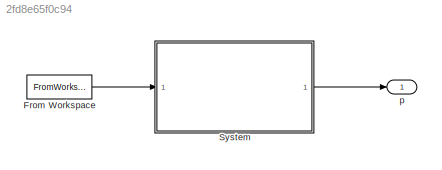
MODEL slx_2fd8e65f0c94
KIND model
CONFIG AbsTol = auto
CONFIG EnableMultiTasking = on
CONFIG FixedStep = auto
CONFIG MaxStep = 1
CONFIG MinStep = auto
CONFIG RelTol = 1e-3
CONFIG SampleTimeConstraint = Unconstrained
CONFIG Solver = ode45
CONFIG SolverName = ode45
CONFIG StartTime = 0.0
CONFIG StopTime = 100.0
BLOCK [FromWorkspace] From Workspace
  OutputAfterFinalValue = Holding final value
  VariableName = data.mdot_in
  ZeroCross = off
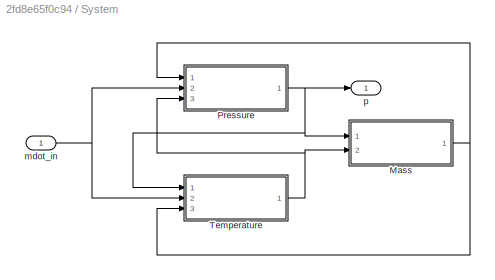
BLOCK [SubSystem] System
  Ports = [1, 1]
  RequestExecContextInheritance = off
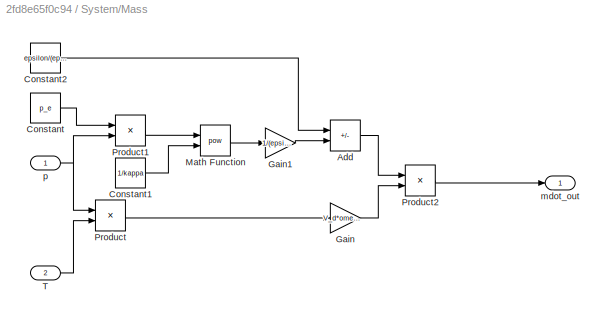
BLOCK [SubSystem] System/Mass
  Ports = [2, 1]
  RequestExecContextInheritance = off
BLOCK [Sum] System/Mass/Add
  IconShape = rectangular
  Inputs = +-
  Ports = [2, 1]
BLOCK [Constant] System/Mass/Constant
  Value = p_e
BLOCK [Constant] System/Mass/Constant1
  Value = 1/kappa
BLOCK [Constant] System/Mass/Constant2
  Value = epsilon/(epsilon-1)
BLOCK [Gain] System/Mass/Gain
  Gain = V_d*omega_e/(4*pi*R)*lambda_lw
BLOCK [Gain] System/Mass/Gain1
  Gain = 1/(epsilon-1)
BLOCK [Math] System/Mass/Math Function
  Operator = pow
  Ports = [2, 1]
BLOCK [Product] System/Mass/Product
  Inputs = */
  Ports = [2, 1]
BLOCK [Product] System/Mass/Product1
  Inputs = */
  Ports = [2, 1]
BLOCK [Product] System/Mass/Product2
  Ports = [2, 1]
BLOCK [Inport] System/Mass/T
  Port = 2
BLOCK [Outport] System/Mass/mdot_out
BLOCK [Inport] System/Mass/p
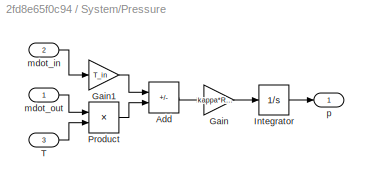
BLOCK [SubSystem] System/Pressure
  Ports = [3, 1]
  RequestExecContextInheritance = off
BLOCK [Sum] System/Pressure/Add
  IconShape = rectangular
  Inputs = +-
  Ports = [2, 1]
BLOCK [Gain] System/Pressure/Gain
  Gain = kappa*R/(V_m)
BLOCK [Gain] System/Pressure/Gain1
  Gain = T_in
BLOCK [Integrator] System/Pressure/Integrator
  InitialCondition = 30000
  Ports = [1, 1]
BLOCK [Product] System/Pressure/Product
  Ports = [2, 1]
BLOCK [Inport] System/Pressure/T
  Port = 3
BLOCK [Inport] System/Pressure/mdot_in
  Port = 2
BLOCK [Inport] System/Pressure/mdot_out
BLOCK [Outport] System/Pressure/p
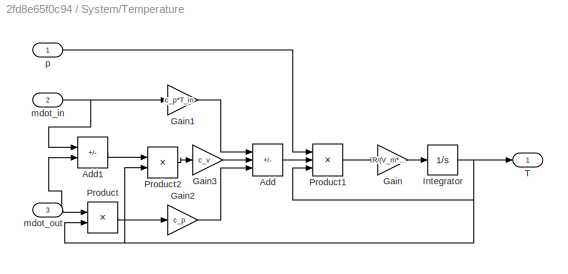
BLOCK [SubSystem] System/Temperature
  Ports = [3, 1]
  RequestExecContextInheritance = off
BLOCK [Sum] System/Temperature/Add
  IconShape = rectangular
  Inputs = +--
  Ports = [3, 1]
BLOCK [Sum] System/Temperature/Add1
  IconShape = rectangular
  Inputs = +-
  Ports = [2, 1]
BLOCK [Gain] System/Temperature/Gain
  Gain = R/(V_m*c_v)
BLOCK [Gain] System/Temperature/Gain1
  Gain = c_p*T_in
BLOCK [Gain] System/Temperature/Gain2
  Gain = c_p
BLOCK [Gain] System/Temperature/Gain3
  Gain = c_v
BLOCK [Integrator] System/Temperature/Integrator
  InitialCondition = 300
  Ports = [1, 1]
BLOCK [Product] System/Temperature/Product
  Ports = [2, 1]
BLOCK [Product] System/Temperature/Product1
  Inputs = /**
  Ports = [3, 1]
BLOCK [Product] System/Temperature/Product2
  Ports = [2, 1]
BLOCK [Outport] System/Temperature/T
BLOCK [Inport] System/Temperature/mdot_in
  Port = 2
BLOCK [Inport] System/Temperature/mdot_out
  Port = 3
BLOCK [Inport] System/Temperature/p
BLOCK [Inport] System/mdot_in
BLOCK [Outport] System/p
BLOCK [Outport] p
  VectorParamsAs1DForOutWhenUnconnected = off
LINE From Workspace:1 -> System:1
LINE System/Mass/Add:1 -> System/Mass/Product2:1
LINE System/Mass/Constant1:1 -> System/Mass/Math Function:2
LINE System/Mass/Constant2:1 -> System/Mass/Add:1
LINE System/Mass/Constant:1 -> System/Mass/Product1:1
LINE System/Mass/Gain1:1 -> System/Mass/Add:2
LINE System/Mass/Gain:1 -> System/Mass/Product2:2
LINE System/Mass/Math Function:1 -> System/Mass/Gain1:1
LINE System/Mass/Product1:1 -> System/Mass/Math Function:1
LINE System/Mass/Product2:1 -> System/Mass/mdot_out:1
LINE System/Mass/Product:1 -> System/Mass/Gain:1
LINE System/Mass/T:1 -> System/Mass/Product:2
NET System/Mass/p:1 -> System/Mass/Product1:2, System/Mass/Product:1
NET System/Mass:1 -> System/Pressure:1, System/Temperature:3
LINE System/Pressure/Add:1 -> System/Pressure/Gain:1
LINE System/Pressure/Gain1:1 -> System/Pressure/Add:1
LINE System/Pressure/Gain:1 -> System/Pressure/Integrator:1
LINE System/Pressure/Integrator:1 -> System/Pressure/p:1
LINE System/Pressure/Product:1 -> System/Pressure/Add:2
LINE System/Pressure/T:1 -> System/Pressure/Product:2
LINE System/Pressure/mdot_in:1 -> System/Pressure/Gain1:1
LINE System/Pressure/mdot_out:1 -> System/Pressure/Product:1
NET System/Pressure:1 -> System/Mass:1, System/Temperature:1, System/p:1
LINE System/Temperature/Add1:1 -> System/Temperature/Product2:1
LINE System/Temperature/Add:1 -> System/Temperature/Product1:2
LINE System/Temperature/Gain1:1 -> System/Temperature/Add:1
LINE System/Temperature/Gain2:1 -> System/Temperature/Add:3
LINE System/Temperature/Gain3:1 -> System/Temperature/Add:2
LINE System/Temperature/Gain:1 -> System/Temperature/Integrator:1
NET System/Temperature/Integrator:1 -> System/Temperature/Product1:3, System/Temperature/Product2:2, System/Temperature/Product:2, System/Temperature/T:1
LINE System/Temperature/Product1:1 -> System/Temperature/Gain:1
LINE System/Temperature/Product2:1 -> System/Temperature/Gain3:1
LINE System/Temperature/Product:1 -> System/Temperature/Gain2:1
NET System/Temperature/mdot_in:1 -> System/Temperature/Add1:1, System/Temperature/Gain1:1
NET System/Temperature/mdot_out:1 -> System/Temperature/Add1:2, System/Temperature/Product:1
LINE System/Temperature/p:1 -> System/Temperature/Product1:1
NET System/Temperature:1 -> System/Mass:2, System/Pressure:3
NET System/mdot_in:1 -> System/Pressure:2, System/Temperature:2
LINE System:1 -> p:1
note: NET lines group one-source signal fan-out (src -> all destinations, sorted); 1:1 wires keep LINE
